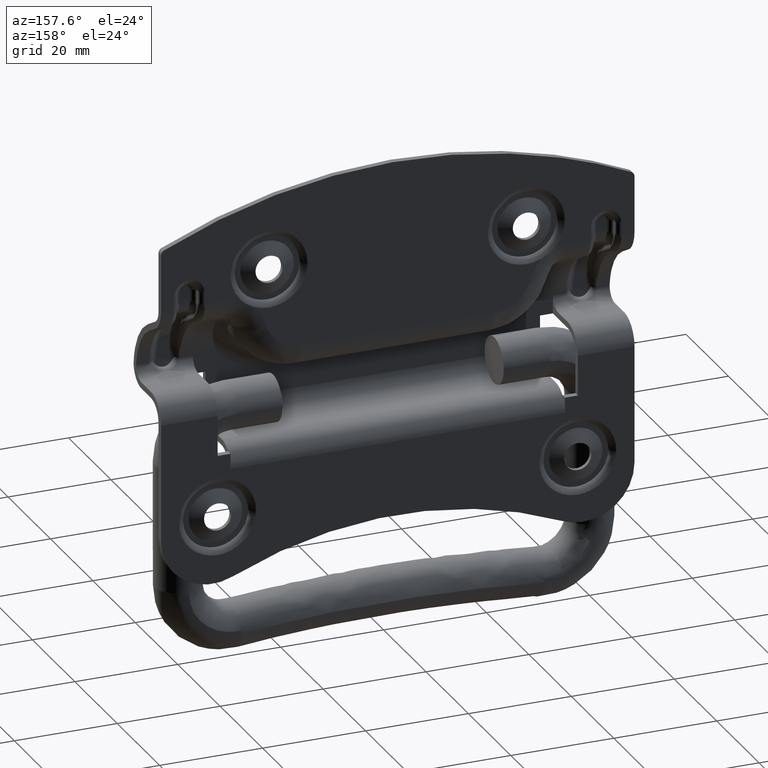
[diagram: clean part render]
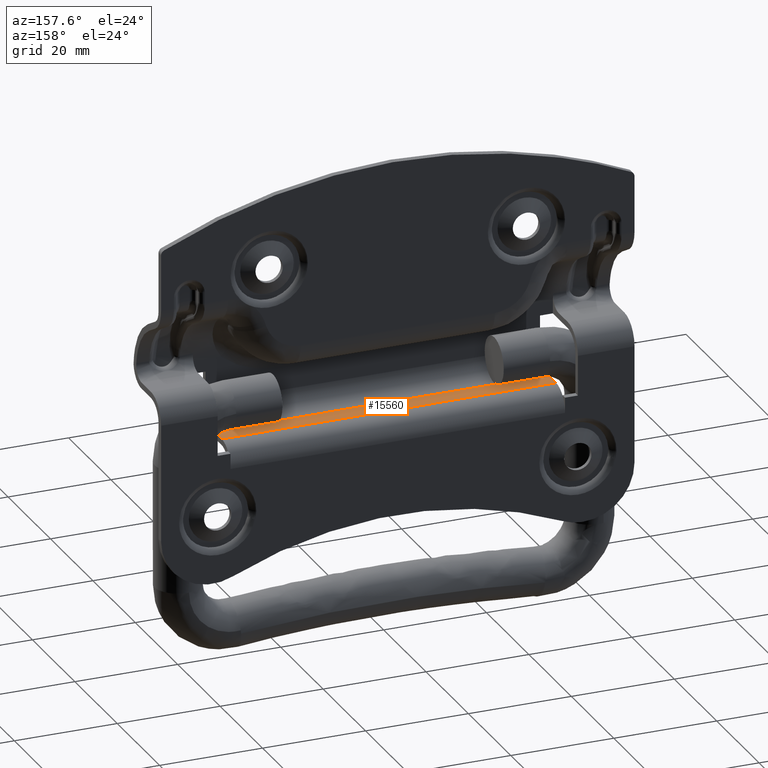
[diagram: same view with one face highlighted and labeled with its STEP entity id]
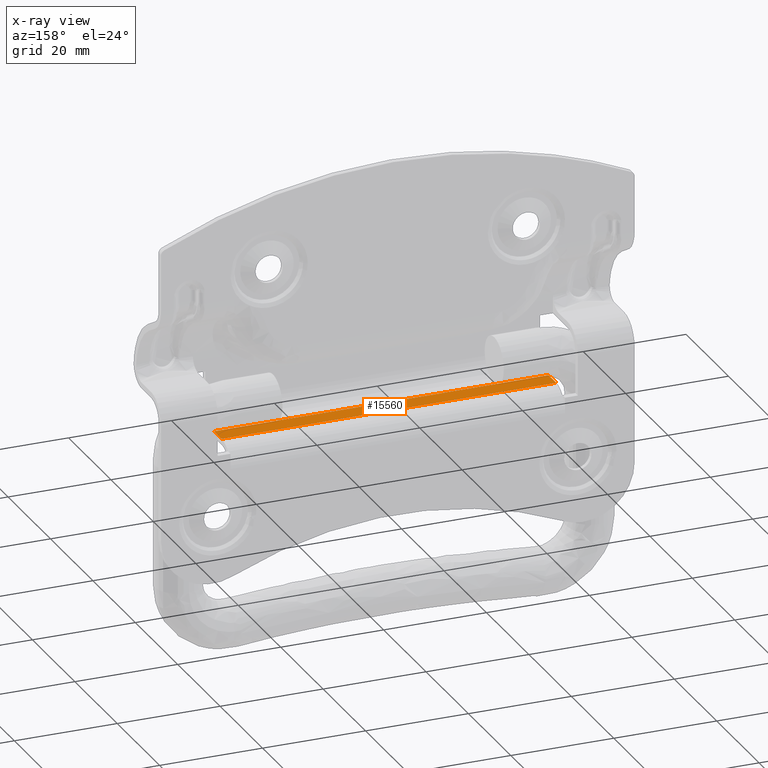
[diagram: x-ray of the same camera — body ghosted, the highlighted face saturated]
A machine part, auxiliary view. The second image highlights one B-rep face of the part: STEP entity #15560.
The next image is the same camera in x-ray: the body ghosted, the highlighted face saturated — about 0% of this face is hidden behind the body in this view.
In plain terms, the highlighted face is a freeform B-spline surface patch.
Its self-contained STEP definition (entity closure, byte-faithful):
#15421=CARTESIAN_POINT('',(32.500000000000000,-1.100000000000096,-5.300000000000100));
#15422=VERTEX_POINT('',#15421);
#15423=CARTESIAN_POINT('',(-32.500500000000002,-1.100000000000096,-5.300000000000100));
#15424=VERTEX_POINT('',#15423);
#15425=CARTESIAN_POINT('',(32.500000000000000,-1.100000000000096,-5.300000000000100));
#15426=CARTESIAN_POINT('',(-32.500500000000002,-1.100000000000096,-5.300000000000100));
#15427=QUASI_UNIFORM_CURVE('',1,(#15425,#15426),.UNSPECIFIED.,.F.,.U.);
#15428=EDGE_CURVE('',#15422,#15424,#15427,.T.);
#15480=CARTESIAN_POINT('',(32.500000000000000,2.499999999999690,-5.300000000000090));
#15481=VERTEX_POINT('',#15480);
#15522=CARTESIAN_POINT('',(-32.500500000000002,2.499999999999690,-5.300000000000090));
#15523=VERTEX_POINT('',#15522);
#15533=CARTESIAN_POINT('',(32.500000000000000,2.499999999999690,-5.300000000000090));
#15534=CARTESIAN_POINT('',(-32.500500000000002,2.499999999999690,-5.300000000000090));
#15535=QUASI_UNIFORM_CURVE('',1,(#15533,#15534),.UNSPECIFIED.,.F.,.U.);
#15536=EDGE_CURVE('',#15481,#15523,#15535,.T.);
#15541=CARTESIAN_POINT('',(-35.747274849016421,-1.279820026816812,-5.300000000000100));
#15542=CARTESIAN_POINT('',(35.746776592465693,-1.279820026816812,-5.300000000000100));
#15543=CARTESIAN_POINT('',(-35.747274849016421,2.679820091189422,-5.300000000000100));
#15544=CARTESIAN_POINT('',(35.746776592465693,2.679820091189422,-5.300000000000100));
#15545=B_SPLINE_SURFACE_WITH_KNOTS('',1,1,((#15541,#15543),(#15542,#15544)),.UNSPECIFIED.,.F.,.F.,.U.,(2,2),(2,2),(0.0,71.494051441482100),(0.0,3.959640118006233),.UNSPECIFIED.);
#15546=ORIENTED_EDGE('',*,*,#15536,.T.);
#15547=CARTESIAN_POINT('',(-32.500500000000002,2.499999999999690,-5.300000000000090));
#15548=CARTESIAN_POINT('',(-32.500500000000002,-1.100000000000096,-5.300000000000100));
#15549=QUASI_UNIFORM_CURVE('',1,(#15547,#15548),.UNSPECIFIED.,.F.,.U.);
#15550=EDGE_CURVE('',#15523,#15424,#15549,.T.);
#15551=ORIENTED_EDGE('',*,*,#15550,.T.);
#15552=ORIENTED_EDGE('',*,*,#15428,.F.);
#15553=CARTESIAN_POINT('',(32.500000000000000,2.499999999999690,-5.300000000000090));
#15554=CARTESIAN_POINT('',(32.500000000000000,-1.100000000000096,-5.300000000000100));
#15555=QUASI_UNIFORM_CURVE('',1,(#15553,#15554),.UNSPECIFIED.,.F.,.U.);
#15556=EDGE_CURVE('',#15481,#15422,#15555,.T.);
#15557=ORIENTED_EDGE('',*,*,#15556,.F.);
#15558=EDGE_LOOP('',(#15546,#15551,#15552,#15557));
#15559=FACE_OUTER_BOUND('',#15558,.T.);
#15560=ADVANCED_FACE('',(#15559),#15545,.T.);